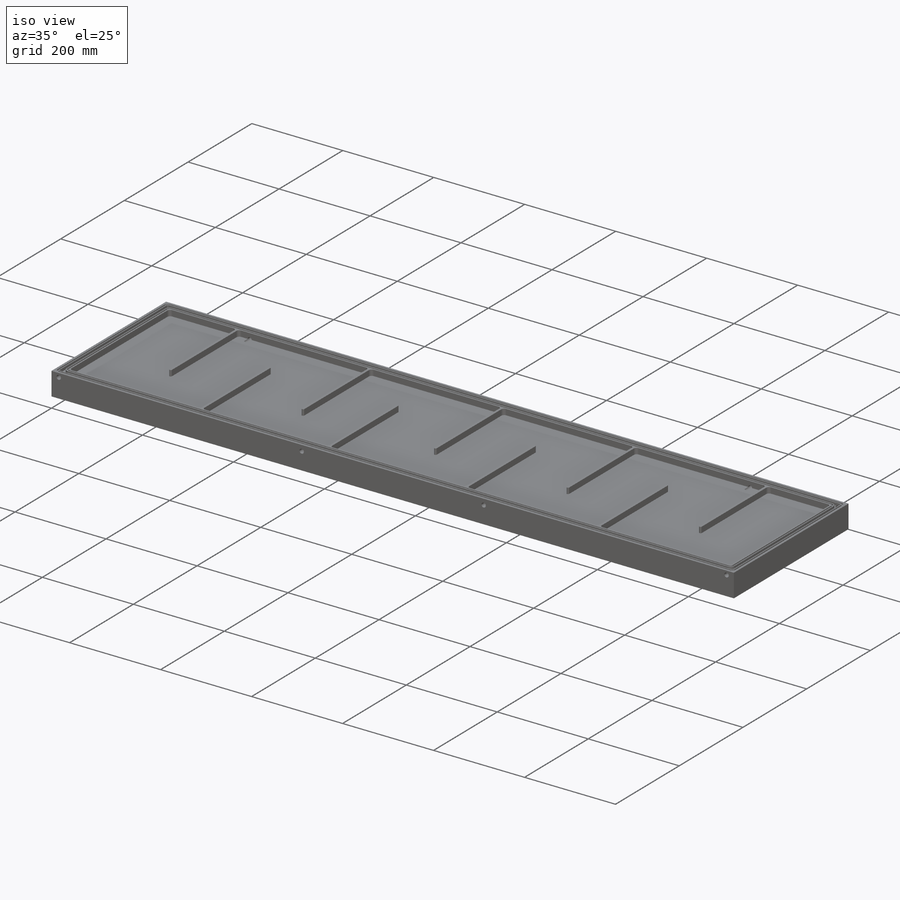
[diagram: iso view]
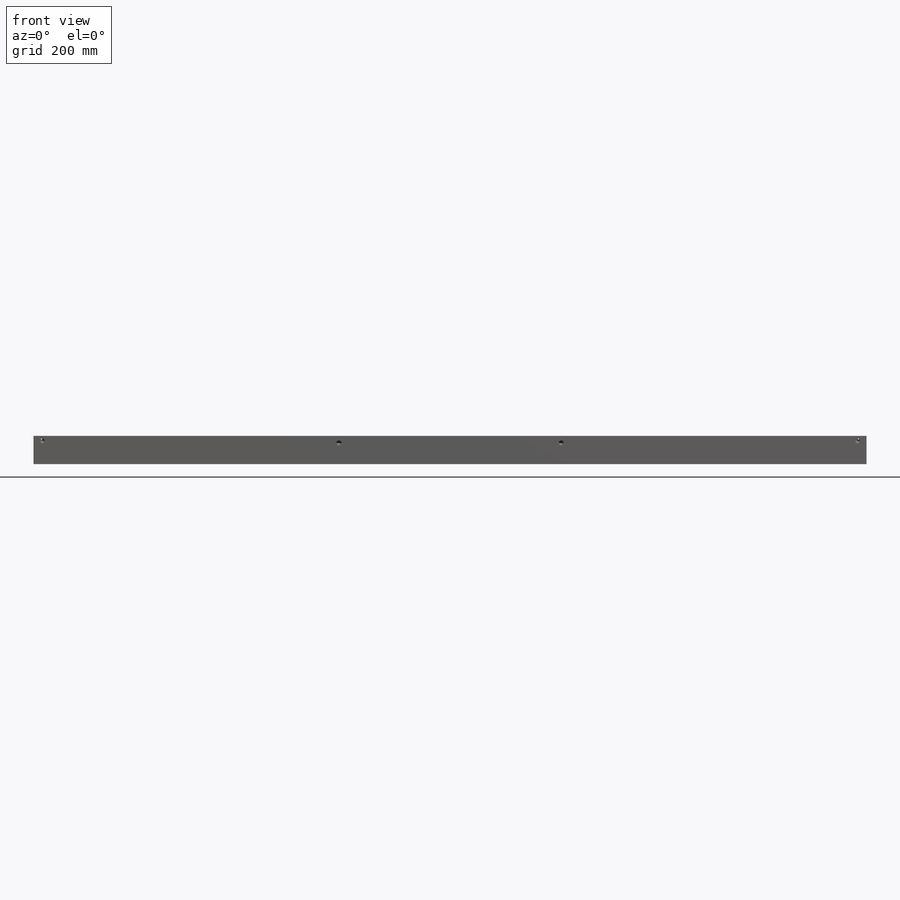
[diagram: front view]
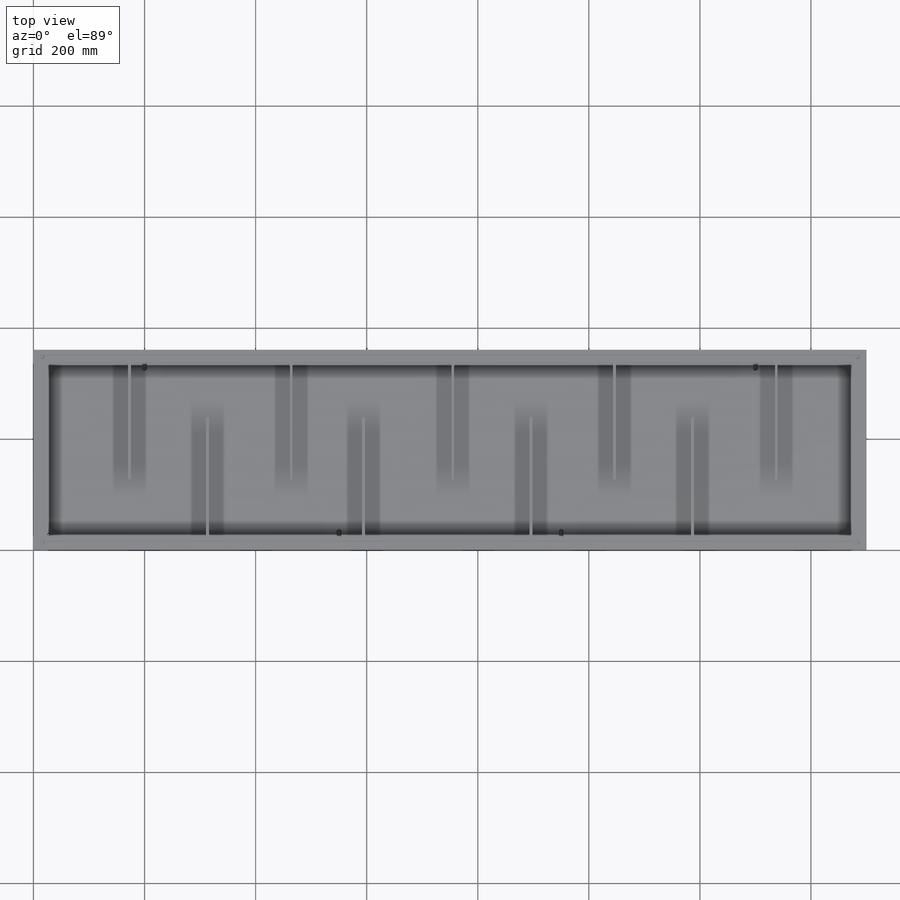
[diagram: top view]
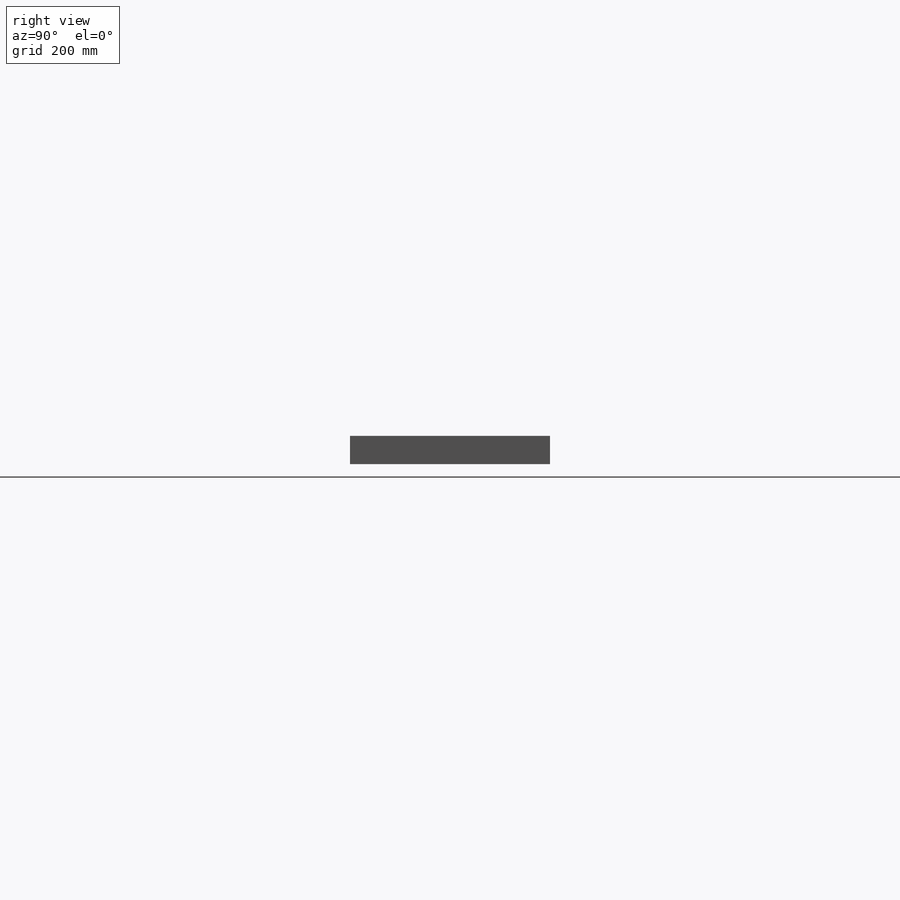
[diagram: right view]
SOLIDWORKS PART (.sldprt)
format: sldprt  version: not decoded by parser v0  size: 2,022,400 bytes
history: native  units: mm
features: sketch x24, hole x9, thread x8, cut_extrude x4, material x1, extrude x1 (+16 scaffold rows collapsed)
feature tree (63):
  scaffold x16  (default folders/planes/origin — collapsed)
  material  "Material <not specified>"
  sketch  "Sketch1"
  extrude  "Boss-Extrude1"  Depth=50.8mm
  sketch  "Sketch2"  dims[c1.D8=5.0mm c1.D9=7.66mm c1.D10=5.0mm c1.D11=7.66mm c1.D12=6.0mm c1.D13=9.66mm c1.D14=3.0mm c1.D15=3.0mm c1.D16=5.0mm c1.D17=7.66mm c1.D18=9.66mm c1.D19=3.0mm c1.D20=5.0mm c1.D21=7.66mm c1.D22=9.66mm c1.D23=3.0mm c1.D24=5.0mm c1.D25=7.66mm c1.D26=9.66mm c1.D27=3.0mm c1.D28=5.0mm c1.D29=7.66mm c1.D30=3.0mm c1.D31=5.0mm c1.D32=7.66mm c1.D33=3.0mm c1.D34=5.0mm c1.D35=7.66mm c2.D12=6.0mm c2.D7=6.0mm c2.D15=6.0mm c2.D19=6.0mm c2.D23=6.0mm c2.D39=6.0mm c2.D40=6.0mm c2.D41=6.0mm c2.D42=6.0mm c2.D43=6.0mm c2.D44=6.0mm c2.D45=6.0mm c2.D46=6.0mm c2.D47=6.0mm c2.D48=6.0mm c2.D49=6.0mm c2.D50=6.0mm c2.D51=6.0mm c2.D52=6.0mm c3.D12=6.0mm c3.D15=6.0mm c3.D19=6.0mm c3.D23=6.0mm c3.D36=6.0mm c3.D37=6.0mm c3.D38=6.0mm c3.D39=6.0mm c3.D40=6.0mm c3.D41=6.0mm c3.D42=6.0mm c3.D43=6.0mm c3.D44=6.0mm c3.D45=6.0mm c3.D46=6.0mm c3.D47=6.0mm c3.D48=6.0mm c3.D49=6.0mm c3.D50=6.0mm c3.D51=6.0mm c3.D52=6.0mm c3.D53=6.0mm c4.D36=100.536mm c4.D37=150.0mm c5.D36=143.036mm c5.D53=105.0mm c6.D36=104.45mm c6.D1=4.9mm c6.D2=7.66mm c6.D3=9.66mm c6.D4=15.66mm c6.D5=17.66mm c6.D6=20.42mm c6.D7=22.32mm c7.D36=100.0mm c7.D37=5.0mm c7.D38=23.32mm c7.D7=23.32mm]
  cut_extrude  "Cut-Extrude2"  [1 undecoded]
  sketch  "Sketch2<6>"  dims[D1=2.41mm]
  cut_extrude  "Cut-Extrude3"  [1 undecoded]
  sketch  "Sketch2<7>"  dims[D1=2.41mm]
  cut_extrude  "Cut-Extrude4"  Depth=6.35mm
  cut_extrude  "Cut-Extrude5"  [1 undecoded]
  sketch  "Sketch2<10>"  dims[D1=12.7mm]
  sketch  "Sketch13"  dims[D1=145.0 D2=31.0]
  hole  "1/8 NPT Tapped Hole2"  Diameter=8.4328mm Depth=15mm
  sketch  "Sketch19"
  sketch  "Sketch18"  dims[hole-wizard template sketch: 51 standard entries collapsed; hole parameters kept: c13.Tap Drill Depth=15.0mm c13.Thread Dia.=~9.489186mm c13.D4=~22.362017mm c13.Thread Angle=3.43deg c13.Thread Depth=6.92mm c13.D6=~25.48394mm c13.Drill Angle=118.0deg]
  thread  "Hole Thread2"  Diameter=6.92mm  [1 undecoded]
  hole  "1/8 NPT Tapped Hole3"  Diameter=8.4328mm Depth=15mm
  sketch  "Sketch21"
  sketch  "Sketch20"  dims[hole-wizard template sketch: 51 standard entries collapsed; hole parameters kept: c13.Tap Drill Depth=15.0mm c13.Thread Dia.=~9.489186mm c13.D4=~22.362017mm c13.Thread Angle=3.43deg c13.Thread Depth=6.92mm c13.D6=~25.48394mm c13.Drill Angle=118.0deg]
  thread  "Hole Thread3"  Diameter=6.92mm  [1 undecoded]
  hole  "1/8 NPT Tapped Hole4"  Diameter=8.4328mm Depth=15mm
  sketch  "Sketch23"
  sketch  "Sketch22"  dims[hole-wizard template sketch: 51 standard entries collapsed; hole parameters kept: c13.Tap Drill Depth=15.0mm c13.Thread Dia.=~9.489186mm c13.D4=~22.362017mm c13.Thread Angle=3.43deg c13.Thread Depth=6.92mm c13.D6=~25.48394mm c13.Drill Angle=118.0deg]
  thread  "Hole Thread4"  Diameter=6.92mm  [1 undecoded]
  hole  "1/8 NPT Tapped Hole5"  Diameter=8.4328mm Depth=15mm
  sketch  "Sketch25"
  sketch  "Sketch24"  dims[hole-wizard template sketch: 51 standard entries collapsed; hole parameters kept: c13.Tap Drill Depth=15.0mm c13.Thread Dia.=~9.489186mm c13.D4=~22.362017mm c13.Thread Angle=3.43deg c13.Thread Depth=6.92mm c13.D6=~25.48394mm c13.Drill Angle=118.0deg]
  thread  "Hole Thread5"  Diameter=6.92mm  [1 undecoded]
  hole  "1/8 NPT Tapped Hole6"  Diameter=8.4328mm Depth=35mm
  sketch  "Sketch27"
  sketch  "Sketch26"  dims[hole-wizard template sketch: 51 standard entries collapsed; hole parameters kept: c13.Tap Drill Depth=35.0mm c13.Thread Dia.=~9.489186mm c13.D4=~22.362017mm c13.Thread Angle=3.43deg c13.Thread Depth=6.92mm c13.D6=~25.48394mm c13.Drill Angle=118.0deg]
  thread  "Hole Thread6"  Diameter=6.92mm  [1 undecoded]
  hole  "1/8 NPT Tapped Hole7"  Diameter=8.4328mm Depth=35mm
  sketch  "Sketch29"
  sketch  "Sketch28"  dims[hole-wizard template sketch: 51 standard entries collapsed; hole parameters kept: c13.Tap Drill Depth=35.0mm c13.Thread Dia.=~9.489186mm c13.D4=~22.362017mm c13.Thread Angle=3.43deg c13.Thread Depth=6.92mm c13.D6=~25.48394mm c13.Drill Angle=118.0deg]
  thread  "Hole Thread7"  Diameter=6.92mm  [1 undecoded]
  hole  "1/8 NPT Tapped Hole8"  Diameter=8.4328mm Depth=35mm
  sketch  "Sketch31"
  sketch  "Sketch30"  dims[hole-wizard template sketch: 51 standard entries collapsed; hole parameters kept: c13.Tap Drill Depth=35.0mm c13.Thread Dia.=~9.489186mm c13.D4=~22.362017mm c13.Thread Angle=3.43deg c13.Thread Depth=6.92mm c13.D6=~25.48394mm c13.Drill Angle=118.0deg]
  thread  "Hole Thread8"  Diameter=6.92mm  [1 undecoded]
  hole  "1/8 NPT Tapped Hole9"  Diameter=8.4328mm Depth=35mm
  sketch  "Sketch33"
  sketch  "Sketch32"  dims[hole-wizard template sketch: 51 standard entries collapsed; hole parameters kept: c13.Tap Drill Depth=35.0mm c13.Thread Dia.=~9.489186mm c13.D4=~22.362017mm c13.Thread Angle=3.43deg c13.Thread Depth=6.92mm c13.D6=~25.48394mm c13.Drill Angle=118.0deg]
  thread  "Hole Thread9"  Diameter=6.92mm  [1 undecoded]
  hole  "Hole1"  Diameter=1.59mm Depth=38.1mm
  sketch  "3DSketch1"
  sketch  "Sketch34"  dims[Diameter=1.59mm Depth=38.1mm C-Drill Diameter=4.76mm C-Drill Depth=30.0mm C-Drill Angle=118.0deg]
decode coverage: 33 of 46 modeling features carry decoded parameters
note: ~ marks probable driven/reference dimensions
note: 11 parameter values undecoded
summary: Diameter pulled from absorbed wizard sketch | no parameter record found for 3 features
note: suppression state not decoded; provenance and decode notes live in map.json
